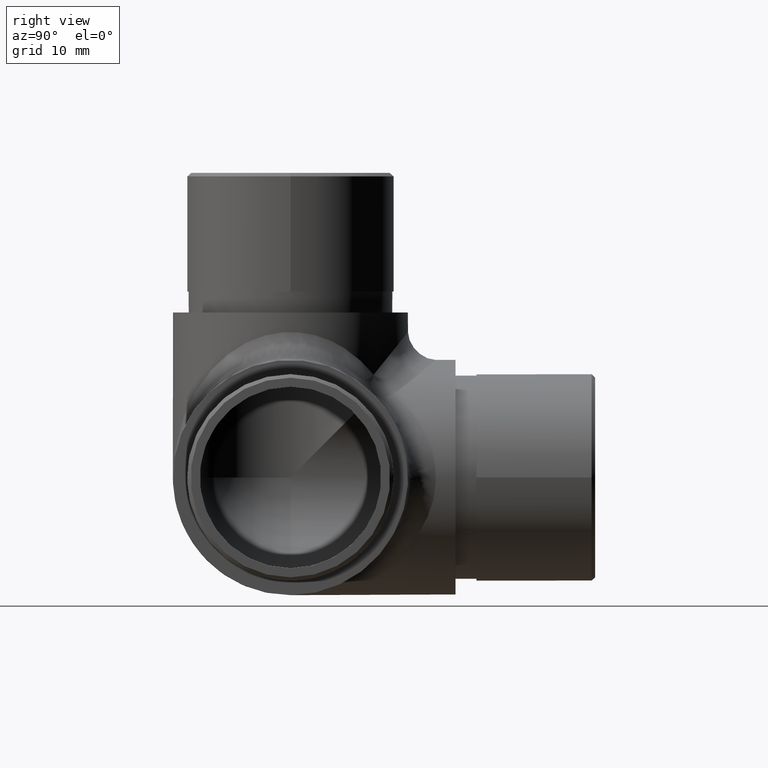
[diagram: clean part render]
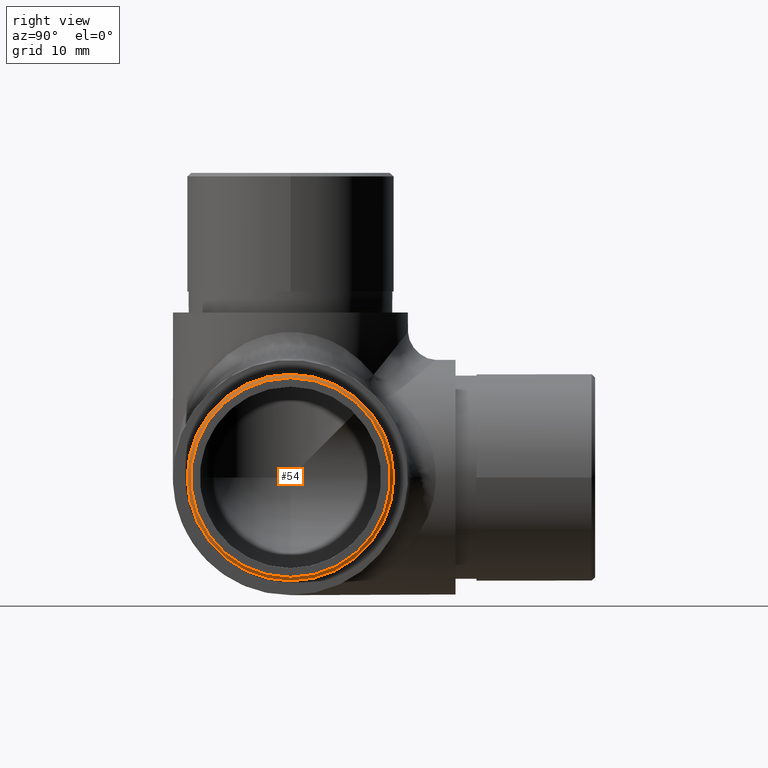
[diagram: same view with one face highlighted and labeled with its STEP entity id]
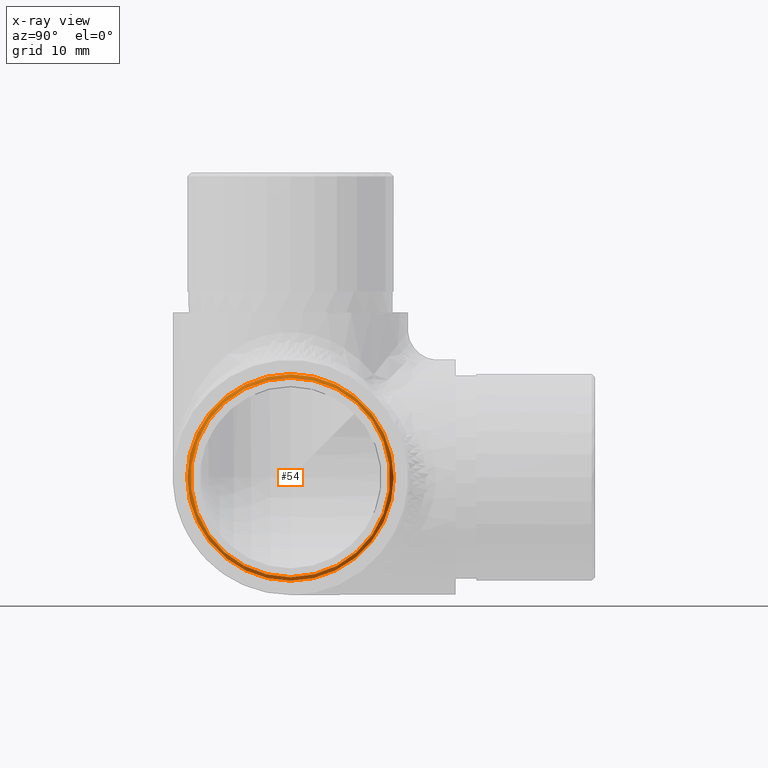
[diagram: x-ray of the same camera — body ghosted, the highlighted face saturated]
A machine part, right view. The second image highlights one B-rep face of the part: STEP entity #54.
The next image is the same camera in x-ray: the body ghosted, the highlighted face saturated — about 0% of this face is hidden behind the body in this view.
In plain terms, the highlighted conical surface has half-angle 45 deg.
Its self-contained STEP definition (entity closure, byte-faithful):
#14 = AXIS2_PLACEMENT_3D ( 'NONE', #587, #584, #767 ) ;
#35 = CARTESIAN_POINT ( 'NONE',  ( 43.14999999999999100, 16.85000000000000100, 16.84999999999998000 ) ) ;
#54 = ADVANCED_FACE ( 'NONE', ( #526, #109 ), #853, .T. ) ;
#70 = VERTEX_POINT ( 'NONE', #455 ) ;
#109 = FACE_OUTER_BOUND ( 'NONE', #272, .T. ) ;
#197 = CARTESIAN_POINT ( 'NONE',  ( 43.64999999999999100, 16.85000000000000100, 2.549999999999989600 ) ) ;
#203 = DIRECTION ( 'NONE',  ( 0.0000000000000000000, 0.0000000000000000000, -1.000000000000000000 ) ) ;
#272 = EDGE_LOOP ( 'NONE', ( #982 ) ) ;
#278 = CIRCLE ( 'NONE', #14, 14.29999999999999000 ) ;
#394 = ORIENTED_EDGE ( 'NONE', *, *, #659, .F. ) ;
#425 = AXIS2_PLACEMENT_3D ( 'NONE', #663, #664, #746 ) ;
#449 = CIRCLE ( 'NONE', #745, 14.79999999999999900 ) ;
#455 = CARTESIAN_POINT ( 'NONE',  ( 43.14999999999999100, 16.85000000000000100, 2.049999999999980700 ) ) ;
#526 = FACE_BOUND ( 'NONE', #660, .T. ) ;
#584 = DIRECTION ( 'NONE',  ( 1.000000000000000000, 0.0000000000000000000, -4.440892098500625200E-016 ) ) ;
#587 = CARTESIAN_POINT ( 'NONE',  ( 43.64999999999999900, 16.85000000000000100, 16.84999999999998000 ) ) ;
#659 = EDGE_CURVE ( 'NONE', #673, #673, #278, .T. ) ;
#660 = EDGE_LOOP ( 'NONE', ( #394 ) ) ;
#663 = CARTESIAN_POINT ( 'NONE',  ( 43.14999999999999100, 16.85000000000000100, 16.84999999999998000 ) ) ;
#664 = DIRECTION ( 'NONE',  ( -1.000000000000000000, -0.0000000000000000000, -0.0000000000000000000 ) ) ;
#673 = VERTEX_POINT ( 'NONE', #197 ) ;
#713 = DIRECTION ( 'NONE',  ( -1.000000000000000000, -0.0000000000000000000, -0.0000000000000000000 ) ) ;
#745 = AXIS2_PLACEMENT_3D ( 'NONE', #35, #713, #203 ) ;
#746 = DIRECTION ( 'NONE',  ( 0.0000000000000000000, 0.0000000000000000000, 1.000000000000000000 ) ) ;
#767 = DIRECTION ( 'NONE',  ( -4.852373359375687400E-016, 0.0000000000000000000, -1.000000000000000000 ) ) ;
#853 = CONICAL_SURFACE ( 'NONE', #425, 14.79999999999999700, 0.7853981633974447300 ) ;
#982 = ORIENTED_EDGE ( 'NONE', *, *, #1069, .F. ) ;
#1069 = EDGE_CURVE ( 'NONE', #70, #70, #449, .T. ) ;